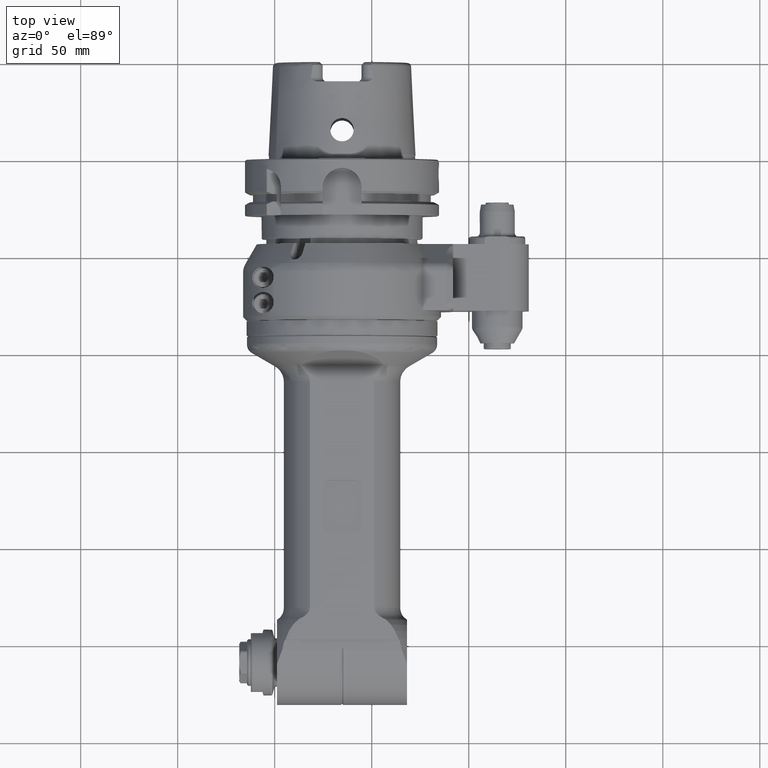
[diagram: clean part render]
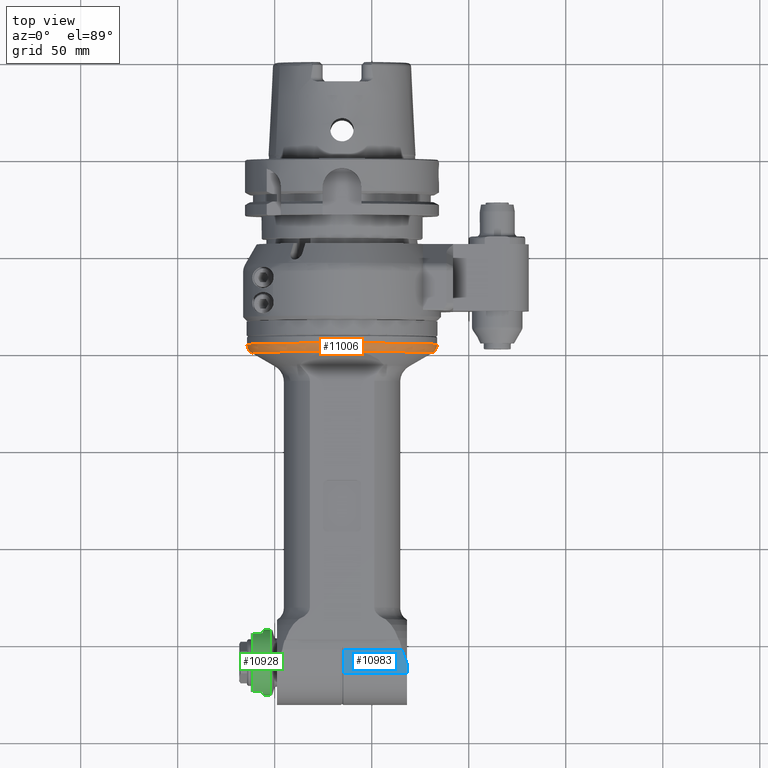
[diagram: same view with three faces highlighted in distinct colors, each labeled with its STEP entity id]
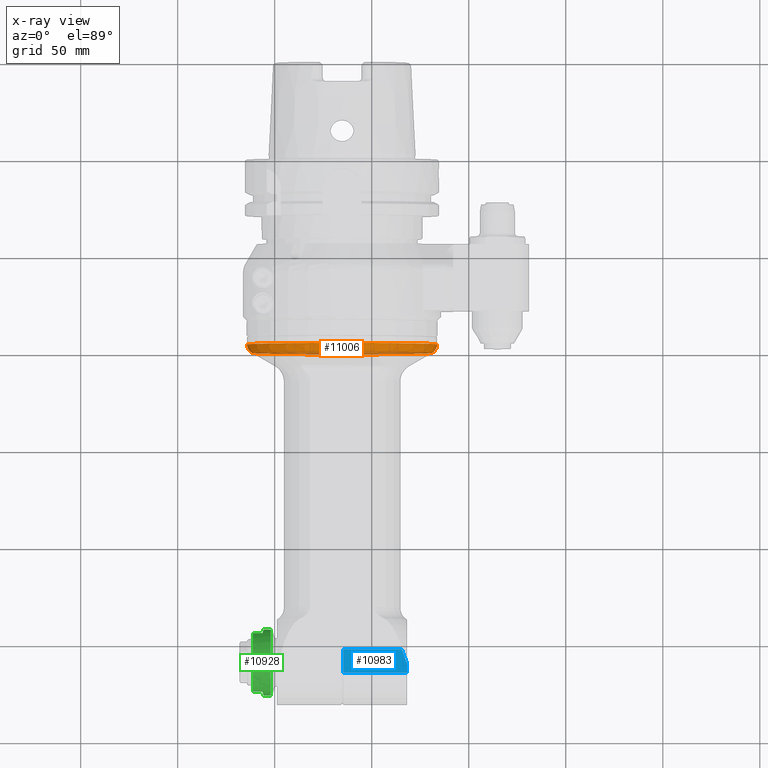
[diagram: x-ray of the same camera — body ghosted, the three highlighted faces saturated]
A machine part, top view with three faces highlighted in distinct colors.
The next image is the same camera in x-ray (body ghosted, the three faces saturated) — at least one of them is partly hidden behind the body in this view.
Their STEP definitions:

[orange] entity #11006 — the highlighted toroidal blend (fillet) surface has major radius 44 mm and minor (blend) radius 5 mm.
#56=B_SPLINE_CURVE_WITH_KNOTS('',3,(#16325,#16326,#16327,#16328,#16329,
#16330,#16331,#16332,#16333,#16334),.UNSPECIFIED.,.F.,.F.,(4,2,2,2,4),(-2.66047980361547,
-2.55491938589005,-1.86220819496479,-1.16949700403954,-1.06393658631412),
 .UNSPECIFIED.);
#69=B_SPLINE_CURVE_WITH_KNOTS('',3,(#16809,#16810,#16811,#16812,#16813,
#16814,#16815,#16816,#16817,#16818),.UNSPECIFIED.,.F.,.F.,(4,2,2,2,4),(-2.66047980361498,
-2.55491938589005,-1.86220819496479,-1.16949700403954,-1.06393658631469),
 .UNSPECIFIED.);
#205=TOROIDAL_SURFACE('',#11818,44.,5.);
#850=CIRCLE('',#11690,46.5);
#851=CIRCLE('',#11691,46.5);
#907=CIRCLE('',#11817,46.5);
#908=CIRCLE('',#11819,49.);
#909=CIRCLE('',#11820,5.);
#1413=FACE_OUTER_BOUND('',#2044,.T.);
#2044=EDGE_LOOP('',(#7872,#7873,#7874,#7875,#7876,#7877,#7878,#7879));
#4504=VERTEX_POINT('',#16322);
#4505=VERTEX_POINT('',#16324);
#4507=VERTEX_POINT('',#16339);
#4508=VERTEX_POINT('',#16341);
#4594=VERTEX_POINT('',#16802);
#4595=VERTEX_POINT('',#16806);
#5744=EDGE_CURVE('',#4504,#4505,#56,.T.);
#5747=EDGE_CURVE('',#4507,#4505,#850,.T.);
#5748=EDGE_CURVE('',#4508,#4507,#851,.T.);
#5892=EDGE_CURVE('',#4504,#4594,#907,.T.);
#5893=EDGE_CURVE('',#4595,#4595,#908,.T.);
#5894=EDGE_CURVE('',#4595,#4507,#909,.T.);
#5895=EDGE_CURVE('',#4594,#4508,#69,.T.);
#7872=ORIENTED_EDGE('',*,*,#5893,.T.);
#7873=ORIENTED_EDGE('',*,*,#5894,.T.);
#7874=ORIENTED_EDGE('',*,*,#5747,.T.);
#7875=ORIENTED_EDGE('',*,*,#5744,.F.);
#7876=ORIENTED_EDGE('',*,*,#5892,.T.);
#7877=ORIENTED_EDGE('',*,*,#5895,.T.);
#7878=ORIENTED_EDGE('',*,*,#5748,.T.);
#7879=ORIENTED_EDGE('',*,*,#5894,.F.);
#11006=ADVANCED_FACE('',(#1413),#205,.T.);
#11690=AXIS2_PLACEMENT_3D('',#16340,#13024,#13025);
#11691=AXIS2_PLACEMENT_3D('',#16342,#13026,#13027);
#11817=AXIS2_PLACEMENT_3D('',#16804,#13320,#13321);
#11818=AXIS2_PLACEMENT_3D('',#16805,#13322,#13323);
#11819=AXIS2_PLACEMENT_3D('',#16807,#13324,#13325);
#11820=AXIS2_PLACEMENT_3D('',#16808,#13326,#13327);
#13024=DIRECTION('center_axis',(-1.,0.,0.));
#13025=DIRECTION('ref_axis',(0.,-0.177495530843392,-0.984121606576455));
#13026=DIRECTION('center_axis',(-1.,0.,0.));
#13027=DIRECTION('ref_axis',(0.,-0.177495530843392,-0.984121606576455));
#13320=DIRECTION('center_axis',(-1.,0.,0.));
#13321=DIRECTION('ref_axis',(0.,0.177495530843392,0.984121606576455));
#13322=DIRECTION('center_axis',(-1.,0.,0.));
#13323=DIRECTION('ref_axis',(0.,1.,0.));
#13324=DIRECTION('center_axis',(1.,0.,0.));
#13325=DIRECTION('ref_axis',(0.,-1.,0.));
#13326=DIRECTION('center_axis',(0.,1.22464679914735E-16,1.));
#13327=DIRECTION('ref_axis',(0.,-1.,1.22464679914735E-16));
#16322=CARTESIAN_POINT('',(20.44337571763,8.253542184218,45.7616547058));
#16324=CARTESIAN_POINT('',(20.44337571763,-8.253542184218,45.7616547058));
#16325=CARTESIAN_POINT('Ctrl Pts',(20.4433757176352,8.25354218421699,45.7616547057999));
#16326=CARTESIAN_POINT('Ctrl Pts',(20.38202033743,7.9176169654829,45.9302272274759));
#16327=CARTESIAN_POINT('Ctrl Pts',(20.3286442922213,7.5498353437811,46.0768767064267));
#16328=CARTESIAN_POINT('Ctrl Pts',(20.00800054598,5.05955185517031,46.9578381589137));
#16329=CARTESIAN_POINT('Ctrl Pts',(19.8934108308826,2.30903730308418,47.2726708136457));
#16330=CARTESIAN_POINT('Ctrl Pts',(19.8934108308826,-2.30903730308418,47.2726708136457));
#16331=CARTESIAN_POINT('Ctrl Pts',(20.00800054598,-5.05955185517031,46.9578381589137));
#16332=CARTESIAN_POINT('Ctrl Pts',(20.3286442922213,-7.5498353437811,46.0768767064266));
#16333=CARTESIAN_POINT('Ctrl Pts',(20.38202033743,-7.91761696548291,45.9302272274759));
#16334=CARTESIAN_POINT('Ctrl Pts',(20.4433757176352,-8.253542184217,45.7616547057999));
#16339=CARTESIAN_POINT('',(20.44337571763,-46.5,5.69460761603519E-15));
#16340=CARTESIAN_POINT('Origin',(20.44337571763,0.,0.));
#16341=CARTESIAN_POINT('',(20.44337571763,-8.253542184216,-45.76165470581));
#16342=CARTESIAN_POINT('Origin',(20.44337571763,0.,0.));
#16802=CARTESIAN_POINT('',(20.44337571763,8.253542184217,-45.76165470581));
#16804=CARTESIAN_POINT('Origin',(20.44337571763,0.,0.));
#16805=CARTESIAN_POINT('Origin',(16.11324869871,0.,0.));
#16806=CARTESIAN_POINT('',(16.11324869871,-49.,6.00076931582203E-15));
#16807=CARTESIAN_POINT('Origin',(16.11324869871,0.,0.));
#16808=CARTESIAN_POINT('Origin',(16.11324869871,-44.,5.38844591624836E-15));
#16809=CARTESIAN_POINT('Ctrl Pts',(20.4433757176344,8.25354218421233,-45.7616547058023));
#16810=CARTESIAN_POINT('Ctrl Pts',(20.3820203374295,7.91761696547951,-45.9302272274773));
#16811=CARTESIAN_POINT('Ctrl Pts',(20.3286442922211,7.54983534377957,-46.0768767064272));
#16812=CARTESIAN_POINT('Ctrl Pts',(20.00800054598,5.05955185517031,-46.9578381589137));
#16813=CARTESIAN_POINT('Ctrl Pts',(19.8934108308826,2.30903730308418,-47.2726708136457));
#16814=CARTESIAN_POINT('Ctrl Pts',(19.8934108308826,-2.30903730308418,-47.2726708136457));
#16815=CARTESIAN_POINT('Ctrl Pts',(20.00800054598,-5.05955185517031,-46.9578381589137));
#16816=CARTESIAN_POINT('Ctrl Pts',(20.328644292221,-7.54983534377932,-46.0768767064273));
#16817=CARTESIAN_POINT('Ctrl Pts',(20.3820203374294,-7.91761696547893,-45.9302272274775));
#16818=CARTESIAN_POINT('Ctrl Pts',(20.4433757176342,-8.25354218421154,-45.7616547058027));

[blue] entity #10983 — the highlighted planar face has unit normal (0, 0.2588, -0.9659).
#41=ELLIPSE('',#11775,277.889209732586,61.2357652891682);
#278=(
BOUNDED_CURVE()
B_SPLINE_CURVE(2,(#16690,#16691,#16692),.UNSPECIFIED.,.F.,.F.)
B_SPLINE_CURVE_WITH_KNOTS((3,3),(0.6083809089203,0.668690733625097),
 .UNSPECIFIED.)
CURVE()
GEOMETRIC_REPRESENTATION_ITEM()
RATIONAL_B_SPLINE_CURVE((1.05761844635318,1.05761844635322,1.05705222463781))
REPRESENTATION_ITEM('')
);
#1390=FACE_OUTER_BOUND('',#2016,.T.);
#2016=EDGE_LOOP('',(#7773,#7774,#7775,#7776,#7777,#7778));
#2692=LINE('',#16550,#3574);
#2703=LINE('',#16672,#3585);
#2708=LINE('',#16695,#3590);
#2709=LINE('',#16697,#3591);
#3574=VECTOR('',#13132,10.);
#3585=VECTOR('',#13199,32.83431457505);
#3590=VECTOR('',#13228,11.9999999999998);
#3591=VECTOR('',#13229,10.);
#4542=VERTEX_POINT('',#16545);
#4543=VERTEX_POINT('',#16549);
#4570=VERTEX_POINT('',#16669);
#4571=VERTEX_POINT('',#16671);
#4574=VERTEX_POINT('',#16689);
#4575=VERTEX_POINT('',#16696);
#5805=EDGE_CURVE('',#4543,#4542,#2692,.T.);
#5845=EDGE_CURVE('',#4570,#4571,#2703,.T.);
#5854=EDGE_CURVE('',#4574,#4542,#278,.T.);
#5856=EDGE_CURVE('',#4574,#4571,#2708,.T.);
#5857=EDGE_CURVE('',#4575,#4570,#2709,.T.);
#5858=EDGE_CURVE('',#4575,#4543,#41,.T.);
#7773=ORIENTED_EDGE('',*,*,#5805,.T.);
#7774=ORIENTED_EDGE('',*,*,#5854,.F.);
#7775=ORIENTED_EDGE('',*,*,#5856,.T.);
#7776=ORIENTED_EDGE('',*,*,#5845,.F.);
#7777=ORIENTED_EDGE('',*,*,#5857,.F.);
#7778=ORIENTED_EDGE('',*,*,#5858,.T.);
#10641=PLANE('',#11774);
#10983=ADVANCED_FACE('',(#1390),#10641,.F.);
#11774=AXIS2_PLACEMENT_3D('',#16694,#13226,#13227);
#11775=AXIS2_PLACEMENT_3D('',#16698,#13230,#13231);
#13132=DIRECTION('',(0.,-1.,0.));
#13199=DIRECTION('',(0.,-1.,0.));
#13226=DIRECTION('center_axis',(-0.258819045102493,0.,-0.965925826289076));
#13227=DIRECTION('ref_axis',(-0.965925826289076,0.,0.258819045102493));
#13228=DIRECTION('',(0.965925824665113,-1.25489491020702E-8,-0.258819051163203));
#13229=DIRECTION('',(0.965925826289076,0.,-0.258819045102493));
#13230=DIRECTION('center_axis',(0.258819045102493,0.,0.965925826289076));
#13231=DIRECTION('ref_axis',(-0.965925826289076,9.58848046552246E-17,0.258819045102493));
#16545=CARTESIAN_POINT('',(173.566227923504,0.652829558118702,24.5000000005895));
#16549=CARTESIAN_POINT('',(173.566227928,30.71080615823,24.5));
#16550=CARTESIAN_POINT('',(173.566227927985,-16.7500000000001,24.5));
#16669=CARTESIAN_POINT('',(185.6940189923,33.5,21.25036817836));
#16671=CARTESIAN_POINT('',(185.6940189923,0.6656854249493,21.25036817836));
#16672=CARTESIAN_POINT('',(185.6940189923,33.5,21.25036817836));
#16689=CARTESIAN_POINT('',(174.102909084954,0.665685506700957,24.3561967500683));
#16690=CARTESIAN_POINT('Ctrl Pts',(174.102909076804,0.665685424951378,24.3561967195807));
#16691=CARTESIAN_POINT('Ctrl Pts',(173.834712162842,0.665685424952208,24.4280598660895));
#16692=CARTESIAN_POINT('Ctrl Pts',(173.566227923593,0.652829559505798,24.5000000011767));
#16694=CARTESIAN_POINT('Origin',(171.7002025242,-33.5,25.));
#16695=CARTESIAN_POINT('',(174.1029090963,0.6656855755367,24.35619679232));
#16696=CARTESIAN_POINT('',(181.097598665241,33.5000040656455,22.4819815240739));
#16697=CARTESIAN_POINT('',(168.646875066792,33.5,25.8181366264403));
#16698=CARTESIAN_POINT('Origin',(405.789439788772,0.,-37.7240220818525));

[green] entity #10928 — the highlighted cylindrical surface (bore or boss wall) has radius 17 mm, axis along (-1, -0, -0).
#31=ELLIPSE('',#11643,17.5996950669713,17.);
#32=ELLIPSE('',#11644,17.5996950669713,17.);
#516=CYLINDRICAL_SURFACE('',#11641,17.);
#820=CIRCLE('',#11639,17.);
#821=CIRCLE('',#11642,17.);
#822=CIRCLE('',#11645,17.);
#823=CIRCLE('',#11646,17.);
#824=CIRCLE('',#11647,17.);
#1335=FACE_OUTER_BOUND('',#1951,.T.);
#1951=EDGE_LOOP('',(#7457,#7458,#7459,#7460,#7461,#7462,#7463,#7464,#7465,
#7466,#7467,#7468,#7469));
#2652=LINE('',#16040,#3534);
#2653=LINE('',#16054,#3535);
#2655=LINE('',#16061,#3537);
#2656=LINE('',#16065,#3538);
#2657=LINE('',#16068,#3539);
#3534=VECTOR('',#12904,5.000000000003);
#3535=VECTOR('',#12905,5.);
#3537=VECTOR('',#12913,5.);
#3538=VECTOR('',#12916,5.);
#3539=VECTOR('',#12919,17.);
#4437=VERTEX_POINT('',#16010);
#4438=VERTEX_POINT('',#16023);
#4439=VERTEX_POINT('',#16038);
#4440=VERTEX_POINT('',#16039);
#4441=VERTEX_POINT('',#16053);
#4442=VERTEX_POINT('',#16057);
#4443=VERTEX_POINT('',#16060);
#4444=VERTEX_POINT('',#16062);
#4445=VERTEX_POINT('',#16064);
#4446=VERTEX_POINT('',#16067);
#4447=VERTEX_POINT('',#16069);
#5662=EDGE_CURVE('',#4437,#4438,#820,.T.);
#5664=EDGE_CURVE('',#4439,#4440,#2652,.T.);
#5666=EDGE_CURVE('',#4441,#4438,#2653,.T.);
#5668=EDGE_CURVE('',#4439,#4442,#821,.T.);
#5669=EDGE_CURVE('',#4441,#4440,#31,.T.);
#5670=EDGE_CURVE('',#4437,#4443,#2655,.T.);
#5671=EDGE_CURVE('',#4444,#4443,#32,.T.);
#5672=EDGE_CURVE('',#4444,#4445,#2656,.T.);
#5673=EDGE_CURVE('',#4442,#4445,#822,.T.);
#5674=EDGE_CURVE('',#4442,#4446,#2657,.T.);
#5675=EDGE_CURVE('',#4447,#4446,#823,.T.);
#5676=EDGE_CURVE('',#4446,#4447,#824,.T.);
#7457=ORIENTED_EDGE('',*,*,#5668,.F.);
#7458=ORIENTED_EDGE('',*,*,#5664,.T.);
#7459=ORIENTED_EDGE('',*,*,#5669,.F.);
#7460=ORIENTED_EDGE('',*,*,#5666,.T.);
#7461=ORIENTED_EDGE('',*,*,#5662,.F.);
#7462=ORIENTED_EDGE('',*,*,#5670,.T.);
#7463=ORIENTED_EDGE('',*,*,#5671,.F.);
#7464=ORIENTED_EDGE('',*,*,#5672,.T.);
#7465=ORIENTED_EDGE('',*,*,#5673,.F.);
#7466=ORIENTED_EDGE('',*,*,#5674,.T.);
#7467=ORIENTED_EDGE('',*,*,#5675,.F.);
#7468=ORIENTED_EDGE('',*,*,#5676,.F.);
#7469=ORIENTED_EDGE('',*,*,#5674,.F.);
#10928=ADVANCED_FACE('',(#1335),#516,.T.);
#11639=AXIS2_PLACEMENT_3D('',#16024,#12900,#12901);
#11641=AXIS2_PLACEMENT_3D('',#16056,#12907,#12908);
#11642=AXIS2_PLACEMENT_3D('',#16058,#12909,#12910);
#11643=AXIS2_PLACEMENT_3D('',#16059,#12911,#12912);
#11644=AXIS2_PLACEMENT_3D('',#16063,#12914,#12915);
#11645=AXIS2_PLACEMENT_3D('',#16066,#12917,#12918);
#11646=AXIS2_PLACEMENT_3D('',#16070,#12920,#12921);
#11647=AXIS2_PLACEMENT_3D('',#16071,#12922,#12923);
#12900=DIRECTION('center_axis',(0.,-1.,0.));
#12901=DIRECTION('ref_axis',(0.,0.,1.));
#12904=DIRECTION('',(0.,1.,0.));
#12905=DIRECTION('',(0.,-1.,0.));
#12907=DIRECTION('center_axis',(0.,-1.,0.));
#12908=DIRECTION('ref_axis',(0.,0.,1.));
#12909=DIRECTION('center_axis',(0.,-1.,0.));
#12910=DIRECTION('ref_axis',(-0.882352941176485,0.,-0.470588235294092));
#12911=DIRECTION('center_axis',(-0.258819045102493,-0.965925826289076,0.));
#12912=DIRECTION('ref_axis',(-0.965925826289076,0.258819045102493,0.));
#12913=DIRECTION('',(0.,1.,0.));
#12914=DIRECTION('center_axis',(0.258819045102493,-0.965925826289076,0.));
#12915=DIRECTION('ref_axis',(-0.965925826289076,-0.258819045102493,0.));
#12916=DIRECTION('',(0.,-1.,0.));
#12917=DIRECTION('center_axis',(0.,-1.,0.));
#12918=DIRECTION('ref_axis',(-0.882352941176485,0.,-0.470588235294092));
#12919=DIRECTION('',(0.,1.,0.));
#12920=DIRECTION('center_axis',(0.,1.,0.));
#12921=DIRECTION('ref_axis',(-1.,0.,0.));
#12922=DIRECTION('center_axis',(0.,1.,0.));
#12923=DIRECTION('ref_axis',(-1.,0.,0.));
#16010=CARTESIAN_POINT('',(194.9999999553,-46.,8.));
#16023=CARTESIAN_POINT('',(164.9999999553,-46.,8.));
#16024=CARTESIAN_POINT('Origin',(179.9999999553,-46.,0.));
#16038=CARTESIAN_POINT('',(164.9999999553,-46.,-8.));
#16039=CARTESIAN_POINT('',(164.9999999553,-41.,-8.));
#16040=CARTESIAN_POINT('',(164.9999999553,-46.,-8.));
#16053=CARTESIAN_POINT('',(164.9999999553,-41.,8.));
#16054=CARTESIAN_POINT('',(164.9999999553,-41.,8.));
#16056=CARTESIAN_POINT('Origin',(179.9999999553,-40.5,0.));
#16057=CARTESIAN_POINT('',(179.9999999553,-46.,-17.));
#16058=CARTESIAN_POINT('Origin',(179.9999999553,-46.,0.));
#16059=CARTESIAN_POINT('Origin',(179.9999999553,-45.0192378864616,0.));
#16060=CARTESIAN_POINT('',(194.9999999553,-41.,8.));
#16061=CARTESIAN_POINT('',(194.9999999553,-46.,8.));
#16062=CARTESIAN_POINT('',(194.9999999553,-41.,-8.));
#16063=CARTESIAN_POINT('Origin',(179.9999999553,-45.0192378864664,0.));
#16064=CARTESIAN_POINT('',(194.9999999553,-46.,-8.));
#16065=CARTESIAN_POINT('',(194.9999999553,-41.,-8.));
#16066=CARTESIAN_POINT('Origin',(179.9999999553,-46.,0.));
#16067=CARTESIAN_POINT('',(179.9999999553,-36.74042535392,-17.));
#16068=CARTESIAN_POINT('',(179.9999999553,-40.5,-17.));
#16069=CARTESIAN_POINT('',(196.9999999553,-36.74042535392,2.0818995585505E-15));
#16070=CARTESIAN_POINT('Origin',(179.9999999553,-36.74042535392,0.));
#16071=CARTESIAN_POINT('Origin',(179.9999999553,-36.74042535392,0.));